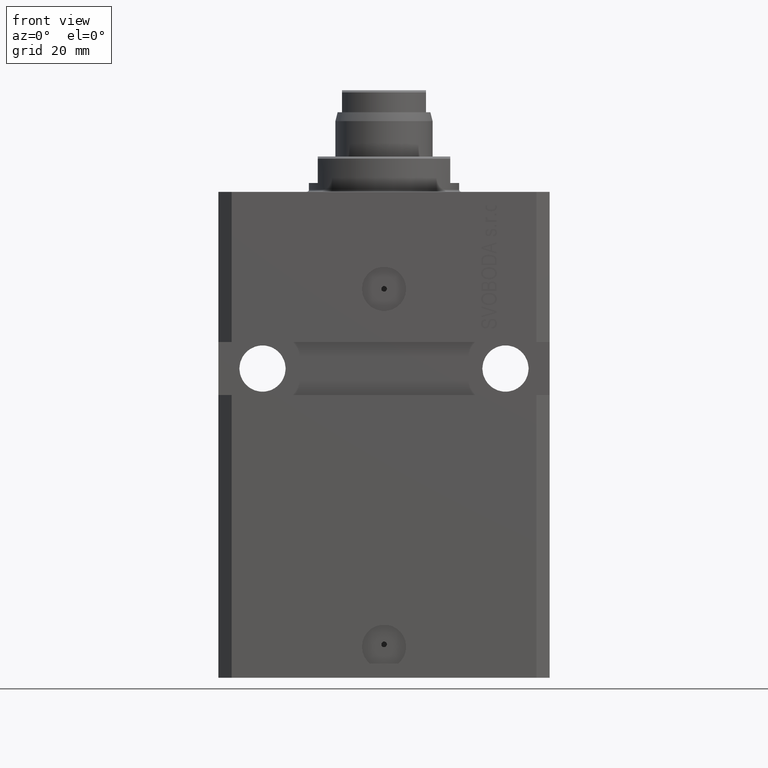
[diagram: clean part render]
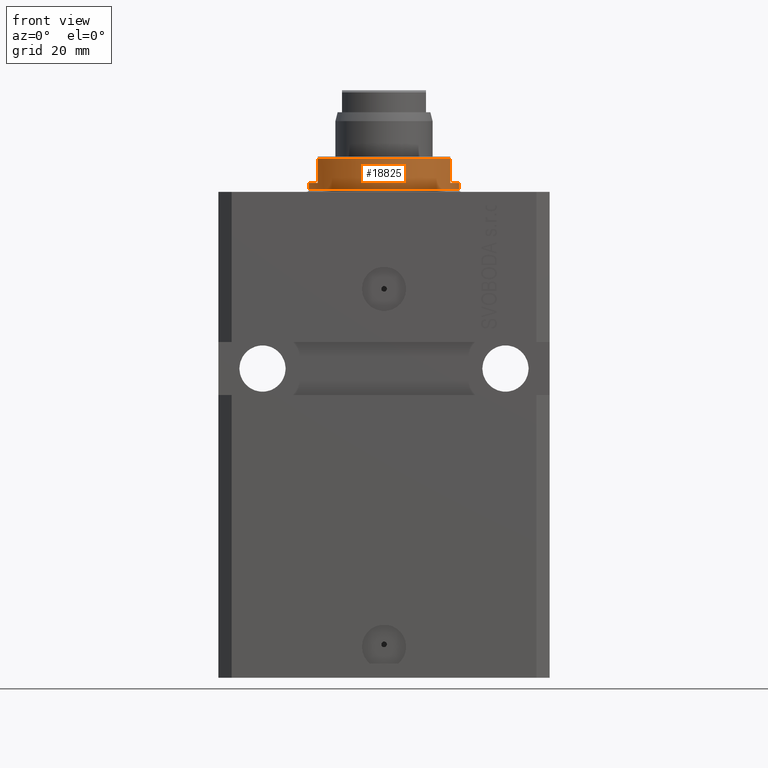
[diagram: same view with one face highlighted and labeled with its STEP entity id]
A machine part, front view. The second image highlights one B-rep face of the part: STEP entity #18825.
In plain terms, the highlighted cylindrical surface (partial cylindrical patch) has radius 17 mm, axis along (0, 0, -1).
Its self-contained STEP definition (entity closure, byte-faithful):
#942 = CIRCLE ( 'NONE', #13036, 17.00000000000000000 ) ;
#1473 = CARTESIAN_POINT ( 'NONE',  ( 0.000000000000000000, 0.000000000000000000, -2.000000000000000000 ) ) ;
#2639 = VERTEX_POINT ( 'NONE', #5583 ) ;
#2779 = VERTEX_POINT ( 'NONE', #3880 ) ;
#3749 = CYLINDRICAL_SURFACE ( 'NONE', #17607, 17.00000000000000000 ) ;
#3880 = CARTESIAN_POINT ( 'NONE',  ( 15.00000000000000000, -8.000000000000001776, -7.499999999999992895 ) ) ;
#4214 = DIRECTION ( 'NONE',  ( 1.000000000000000000, 0.000000000000000000, 0.000000000000000000 ) ) ;
#5583 = CARTESIAN_POINT ( 'NONE',  ( -17.00000000000000000, 2.081899558550500280E-15, -2.000000000000000000 ) ) ;
#5605 = ORIENTED_EDGE ( 'NONE', *, *, #29765, .F. ) ;
#5753 = VERTEX_POINT ( 'NONE', #13324 ) ;
#7480 = ORIENTED_EDGE ( 'NONE', *, *, #17493, .T. ) ;
#7688 = CIRCLE ( 'NONE', #19789, 17.00000000000000000 ) ;
#7828 = DIRECTION ( 'NONE',  ( -0.000000000000000000, -0.000000000000000000, 1.000000000000000000 ) ) ;
#9015 = LINE ( 'NONE', #23181, #35043 ) ;
#10112 = AXIS2_PLACEMENT_3D ( 'NONE', #41647, #44968, #45895 ) ;
#11309 = EDGE_CURVE ( 'NONE', #2639, #25695, #15381, .T. ) ;
#11331 = DIRECTION ( 'NONE',  ( -0.000000000000000000, -0.000000000000000000, 1.000000000000000000 ) ) ;
#12387 = EDGE_CURVE ( 'NONE', #45938, #2779, #7688, .T. ) ;
#13036 = AXIS2_PLACEMENT_3D ( 'NONE', #1473, #37233, #30595 ) ;
#13324 = CARTESIAN_POINT ( 'NONE',  ( 17.00000000000000000, 0.000000000000000000, -2.000000000000000000 ) ) ;
#13368 = CARTESIAN_POINT ( 'NONE',  ( 0.000000000000000000, 0.000000000000000000, -0.5000000000000004441 ) ) ;
#13442 = ORIENTED_EDGE ( 'NONE', *, *, #17609, .F. ) ;
#15024 = VERTEX_POINT ( 'NONE', #36734 ) ;
#15381 = LINE ( 'NONE', #18479, #32594 ) ;
#15939 = CARTESIAN_POINT ( 'NONE',  ( -17.00000000000000000, 2.081899558550500280E-15, -0.5000000000000004441 ) ) ;
#16059 = CIRCLE ( 'NONE', #23620, 17.00000000000000000 ) ;
#17139 = DIRECTION ( 'NONE',  ( 1.000000000000000000, 0.000000000000000000, 0.000000000000000000 ) ) ;
#17493 = EDGE_CURVE ( 'NONE', #32783, #25695, #16059, .T. ) ;
#17607 = AXIS2_PLACEMENT_3D ( 'NONE', #32404, #11331, #4214 ) ;
#17609 = EDGE_CURVE ( 'NONE', #35477, #2639, #942, .T. ) ;
#17643 = DIRECTION ( 'NONE',  ( -0.000000000000000000, -0.000000000000000000, 1.000000000000000000 ) ) ;
#17716 = CARTESIAN_POINT ( 'NONE',  ( -15.00000000000000000, -8.000000000000001776, -7.499999999999993783 ) ) ;
#18111 = EDGE_LOOP ( 'NONE', ( #30498, #13442, #28332, #43024, #45188, #5605, #19835, #7480 ) ) ;
#18479 = CARTESIAN_POINT ( 'NONE',  ( -17.00000000000000000, 2.081899558550500280E-15, -8.000000000000000000 ) ) ;
#18825 = ADVANCED_FACE ( 'NONE', ( #39276 ), #3749, .T. ) ;
#19789 = AXIS2_PLACEMENT_3D ( 'NONE', #23196, #23660, #20361 ) ;
#19835 = ORIENTED_EDGE ( 'NONE', *, *, #28173, .T. ) ;
#20361 = DIRECTION ( 'NONE',  ( -1.000000000000000000, 0.000000000000000000, 0.000000000000000000 ) ) ;
#21199 = CARTESIAN_POINT ( 'NONE',  ( 17.00000000000000000, 0.000000000000000000, -0.5000000000000004441 ) ) ;
#21666 = LINE ( 'NONE', #35640, #42740 ) ;
#22880 = LINE ( 'NONE', #43962, #35703 ) ;
#23181 = CARTESIAN_POINT ( 'NONE',  ( 15.00000000000000000, -8.000000000000001776, -8.000000000000000000 ) ) ;
#23196 = CARTESIAN_POINT ( 'NONE',  ( 0.000000000000000000, 0.000000000000000000, -7.499999999999992895 ) ) ;
#23620 = AXIS2_PLACEMENT_3D ( 'NONE', #13368, #31360, #17139 ) ;
#23646 = DIRECTION ( 'NONE',  ( 0.000000000000000000, 0.000000000000000000, -1.000000000000000000 ) ) ;
#23660 = DIRECTION ( 'NONE',  ( 0.000000000000000000, 0.000000000000000000, 1.000000000000000000 ) ) ;
#25695 = VERTEX_POINT ( 'NONE', #15939 ) ;
#28173 = EDGE_CURVE ( 'NONE', #5753, #32783, #21666, .T. ) ;
#28332 = ORIENTED_EDGE ( 'NONE', *, *, #30153, .T. ) ;
#28979 = EDGE_CURVE ( 'NONE', #15024, #2779, #9015, .T. ) ;
#29765 = EDGE_CURVE ( 'NONE', #5753, #15024, #38731, .T. ) ;
#30153 = EDGE_CURVE ( 'NONE', #35477, #45938, #22880, .T. ) ;
#30498 = ORIENTED_EDGE ( 'NONE', *, *, #11309, .F. ) ;
#30595 = DIRECTION ( 'NONE',  ( -1.000000000000000000, 0.000000000000000000, 0.000000000000000000 ) ) ;
#31360 = DIRECTION ( 'NONE',  ( -0.000000000000000000, -0.000000000000000000, -1.000000000000000000 ) ) ;
#32404 = CARTESIAN_POINT ( 'NONE',  ( 0.000000000000000000, 0.000000000000000000, -8.000000000000000000 ) ) ;
#32594 = VECTOR ( 'NONE', #7828, 1000.000000000000000 ) ;
#32783 = VERTEX_POINT ( 'NONE', #21199 ) ;
#34183 = CARTESIAN_POINT ( 'NONE',  ( -14.99999999999999645, -8.000000000000003553, -2.000000000000000000 ) ) ;
#35043 = VECTOR ( 'NONE', #23646, 1000.000000000000000 ) ;
#35477 = VERTEX_POINT ( 'NONE', #34183 ) ;
#35640 = CARTESIAN_POINT ( 'NONE',  ( 17.00000000000000000, 0.000000000000000000, -8.000000000000000000 ) ) ;
#35703 = VECTOR ( 'NONE', #37346, 1000.000000000000000 ) ;
#36734 = CARTESIAN_POINT ( 'NONE',  ( 14.99999999999999645, -8.000000000000003553, -2.000000000000000000 ) ) ;
#37233 = DIRECTION ( 'NONE',  ( 0.000000000000000000, 0.000000000000000000, -1.000000000000000000 ) ) ;
#37346 = DIRECTION ( 'NONE',  ( 0.000000000000000000, 0.000000000000000000, -1.000000000000000000 ) ) ;
#38731 = CIRCLE ( 'NONE', #10112, 17.00000000000000000 ) ;
#39276 = FACE_OUTER_BOUND ( 'NONE', #18111, .T. ) ;
#41647 = CARTESIAN_POINT ( 'NONE',  ( 0.000000000000000000, 0.000000000000000000, -2.000000000000000000 ) ) ;
#42740 = VECTOR ( 'NONE', #17643, 1000.000000000000000 ) ;
#43024 = ORIENTED_EDGE ( 'NONE', *, *, #12387, .T. ) ;
#43962 = CARTESIAN_POINT ( 'NONE',  ( -15.00000000000000000, -8.000000000000001776, -8.000000000000000000 ) ) ;
#44968 = DIRECTION ( 'NONE',  ( 0.000000000000000000, 0.000000000000000000, -1.000000000000000000 ) ) ;
#45188 = ORIENTED_EDGE ( 'NONE', *, *, #28979, .F. ) ;
#45895 = DIRECTION ( 'NONE',  ( -1.000000000000000000, 0.000000000000000000, 0.000000000000000000 ) ) ;
#45938 = VERTEX_POINT ( 'NONE', #17716 ) ;